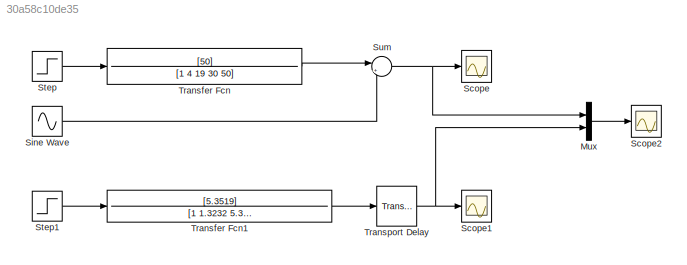
MODEL slx_30a58c10de35
KIND model
CONFIG AbsTol = auto
CONFIG EnableMultiTasking = off
CONFIG FixedStep = auto
CONFIG MaxStep = auto
CONFIG MinStep = auto
CONFIG RelTol = 1e-3
CONFIG SampleTimeConstraint = Unconstrained
CONFIG SolverName = VariableStepAuto
CONFIG StartTime = 0.0
CONFIG StopTime = 20
BLOCK [Mux] Mux
  DisplayOption = bar
  Inputs = 2
  Ports = [2, 1]
BLOCK [Scope] Scope
  Floating = off
  NumInputPorts = 1
  Ports = [1]
  ScopeSpecificationString = Simulink.scopes.TimeScopeBlockCfg('CurrentConfiguration', extmgr.ConfigurationSet(extmgr.Configuration('Core','General UI',true,'FigureColor',[1 1 1]),extmgr.Configuration('Core','Source UI',true),extmgr.Configuration('Sources','WiredSimulink',true,'DataLogging',true,'DataLoggingVariableName','Q2','DataLoggingLimitDataPoints',true,'DataLoggingDecimateData',true,'DataLoggingSaveFormat','Array'),ext...<+1689ch>
BLOCK [Scope] Scope1
  Floating = off
  NumInputPorts = 1
  Ports = [1]
  ScopeSpecificationString = Simulink.scopes.TimeScopeBlockCfg('CurrentConfiguration', extmgr.ConfigurationSet(extmgr.Configuration('Core','General UI',true,'FigureColor',[1 1 1]),extmgr.Configuration('Core','Source UI',true),extmgr.Configuration('Sources','WiredSimulink',true,'DataLogging',true,'DataLoggingVariableName','G2_1','DataLoggingLimitDataPoints',true,'DataLoggingDecimateData',true,'DataLoggingSaveFormat','Array'),e...<+1703ch>
BLOCK [Scope] Scope2
  Floating = off
  NumInputPorts = 1
  Ports = [1]
  ScopeSpecificationString = Simulink.scopes.TimeScopeBlockCfg('CurrentConfiguration', extmgr.ConfigurationSet(extmgr.Configuration('Core','General UI',true,'FigureColor',[1 1 1]),extmgr.Configuration('Core','Source UI',true),extmgr.Configuration('Sources','WiredSimulink',true,'DataLoggingVariableName','Q1','DataLoggingSaveFormat','Array'),extmgr.Configuration('Visuals','Time Domain',true,'SerializedDisplays',{struct('MinYLim...<+1623ch>
BLOCK [Sin] Sine Wave
  Amplitude = 0.05
  Frequency = 40
  Ports = [0, 1]
  SampleTime = 0
BLOCK [Step] Step
  SampleTime = 0
  Time = 0
BLOCK [Step] Step1
  SampleTime = 0
  Time = 0
BLOCK [Sum] Sum
  Inputs = |++
  Ports = [2, 1]
BLOCK [TransferFcn] Transfer Fcn
  Denominator = [1 4 19 30 50]
  Numerator = [50]
BLOCK [TransferFcn] Transfer Fcn1
  Denominator = [1 1.3232 5.3514]
  Numerator = [5.3519]
BLOCK [TransportDelay] Transport Delay
  DelayTime = 0.7222
  Ports = [1, 1]
LINE Mux:1 -> Scope2:1
LINE Sine Wave:1 -> Sum:2
LINE Step1:1 -> Transfer Fcn1:1
LINE Step:1 -> Transfer Fcn:1
NET Sum:1 -> Mux:1, Scope:1
LINE Transfer Fcn1:1 -> Transport Delay:1
LINE Transfer Fcn:1 -> Sum:1
NET Transport Delay:1 -> Mux:2, Scope1:1
note: NET lines group one-source signal fan-out (src -> all destinations, sorted); 1:1 wires keep LINE
